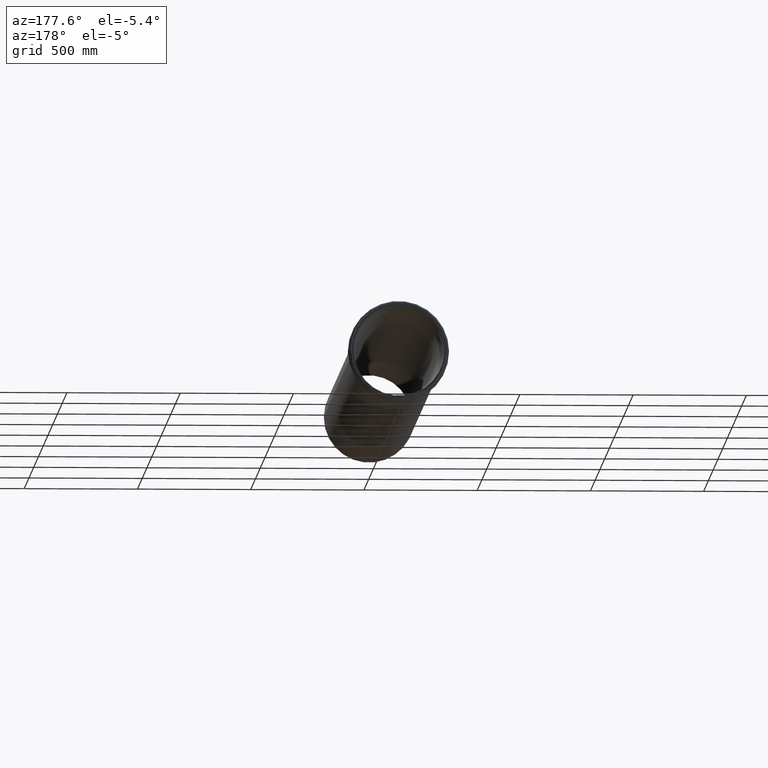
[diagram: clean part render]
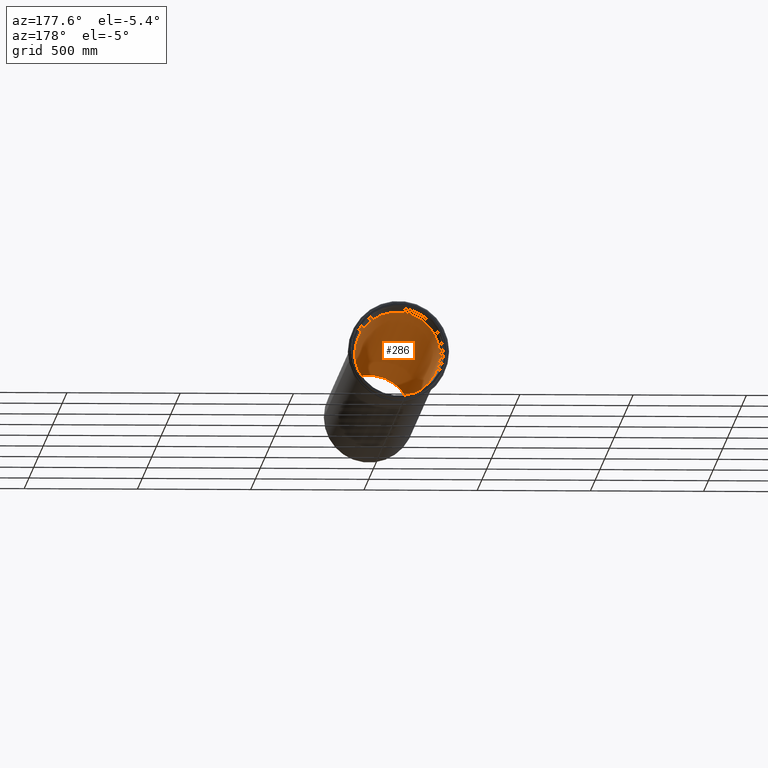
[diagram: same view with one face highlighted and labeled with its STEP entity id]
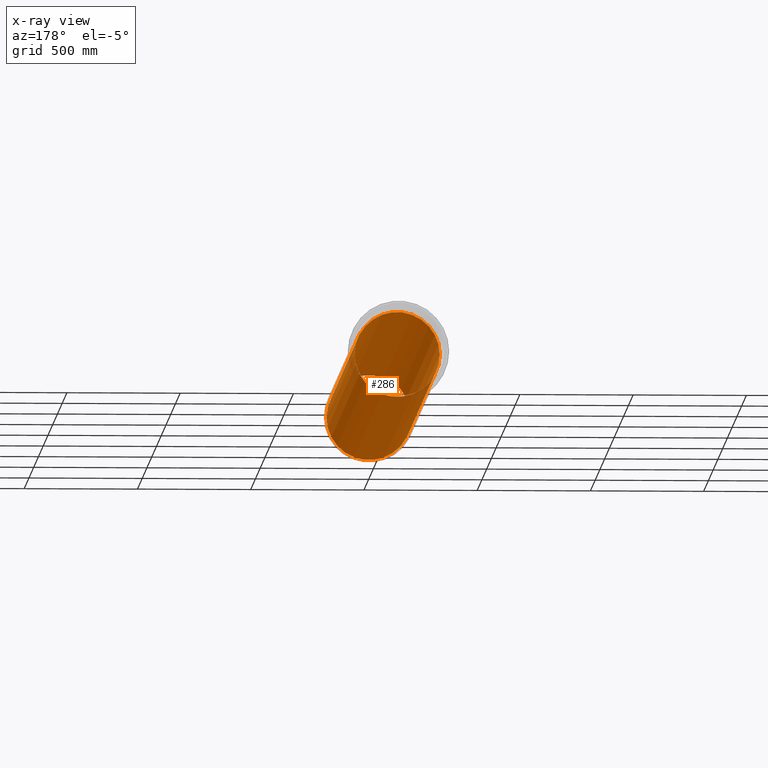
[diagram: x-ray of the same camera — body ghosted, the highlighted face saturated]
A machine part, auxiliary view. The second image highlights one B-rep face of the part: STEP entity #286.
The next image is the same camera in x-ray: the body ghosted, the highlighted face saturated — about 3% of this face is hidden behind the body in this view.
In plain terms, the highlighted cylindrical surface (bore or boss wall) has radius 187.775 mm, axis along (0, -1, 0).
Its self-contained STEP definition (entity closure, byte-faithful):
#24=CYLINDRICAL_SURFACE('',#337,187.775);
#53=FACE_BOUND('',#125,.T.);
#78=FACE_OUTER_BOUND('',#124,.T.);
#124=EDGE_LOOP('',(#249));
#125=EDGE_LOOP('',(#250));
#155=CIRCLE('',#336,187.775);
#156=CIRCLE('',#338,187.775);
#180=VERTEX_POINT('',#512);
#181=VERTEX_POINT('',#515);
#205=EDGE_CURVE('',#180,#180,#155,.T.);
#206=EDGE_CURVE('',#181,#181,#156,.T.);
#249=ORIENTED_EDGE('',*,*,#205,.T.);
#250=ORIENTED_EDGE('',*,*,#206,.F.);
#286=ADVANCED_FACE('',(#78,#53),#24,.F.);
#336=AXIS2_PLACEMENT_3D('',#513,#432,#433);
#337=AXIS2_PLACEMENT_3D('',#514,#434,#435);
#338=AXIS2_PLACEMENT_3D('',#516,#436,#437);
#432=DIRECTION('center_axis',(0.,-1.,0.));
#433=DIRECTION('ref_axis',(1.,0.,0.));
#434=DIRECTION('center_axis',(0.,-1.,0.));
#435=DIRECTION('ref_axis',(1.,0.,0.));
#436=DIRECTION('center_axis',(0.,-1.,0.));
#437=DIRECTION('ref_axis',(1.,0.,0.));
#512=CARTESIAN_POINT('',(187.775,-2966.39003823142,0.));
#513=CARTESIAN_POINT('Origin',(0.,-2966.39003823142,0.));
#514=CARTESIAN_POINT('Origin',(0.,-1483.19501911571,0.));
#515=CARTESIAN_POINT('',(187.775,-2.69422295812417E-16,0.));
#516=CARTESIAN_POINT('Origin',(0.,0.,0.));